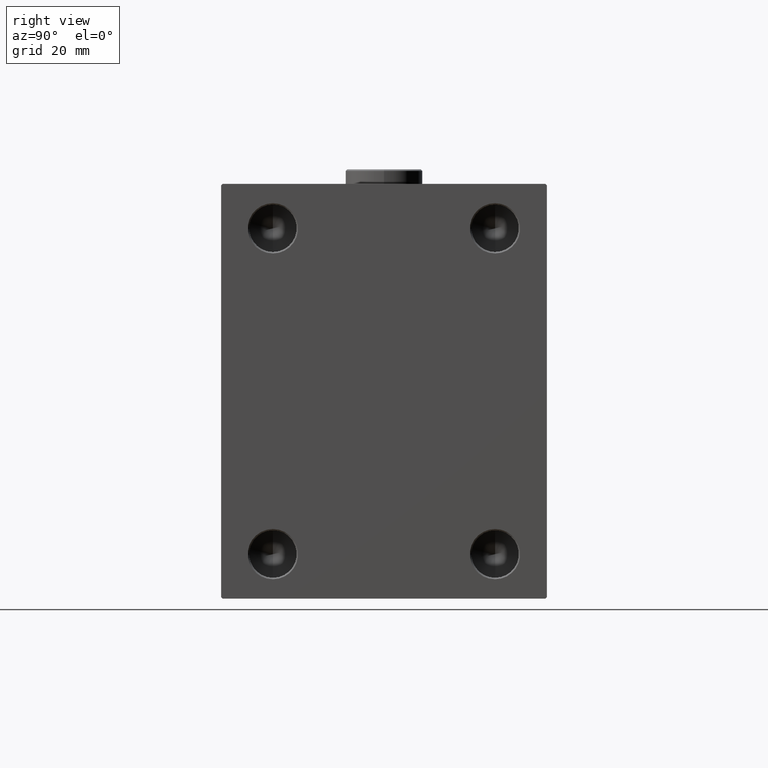
[diagram: clean part render]
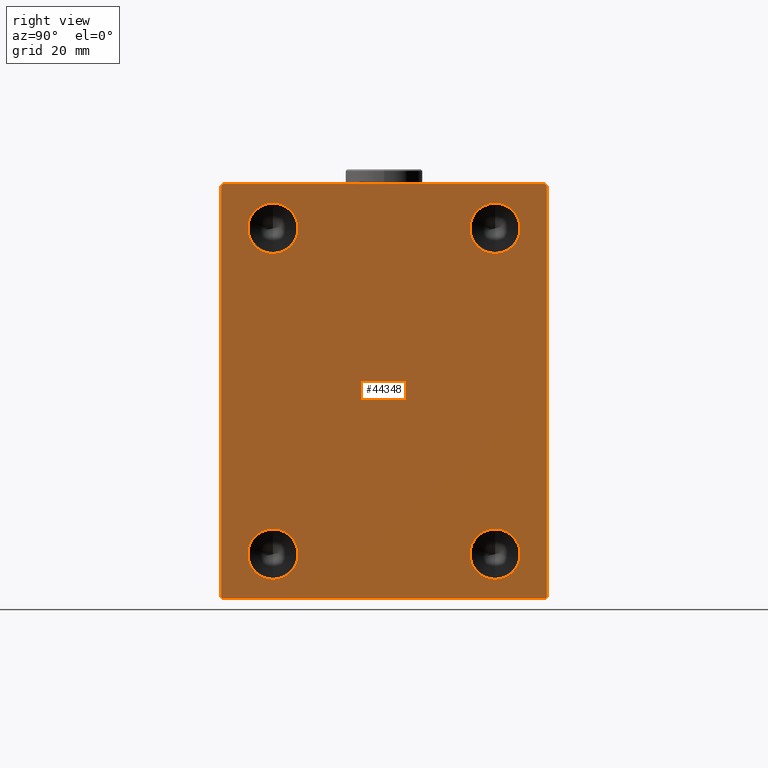
[diagram: same view with one face highlighted and labeled with its STEP entity id]
A machine part, right view. The second image highlights one B-rep face of the part: STEP entity #44348.
In plain terms, the highlighted planar face has unit normal (1, 0, 0).
Its self-contained STEP definition (entity closure, byte-faithful):
#60 = DIRECTION ( 'NONE',  ( -0.000000000000000000, -0.7071067811865474617, 0.7071067811865474617 ) ) ;
#397 = CARTESIAN_POINT ( 'NONE',  ( 153.0000000000000000, 37.50000000000000000, 55.00000000000000711 ) ) ;
#1197 = CARTESIAN_POINT ( 'NONE',  ( 153.0000000000000000, -37.49999999999999289, -46.49999999999994316 ) ) ;
#1283 = ORIENTED_EDGE ( 'NONE', *, *, #44210, .F. ) ;
#2653 = LINE ( 'NONE', #20443, #39554 ) ;
#2790 = DIRECTION ( 'NONE',  ( 1.000000000000000000, -0.000000000000000000, -0.000000000000000000 ) ) ;
#3127 = CIRCLE ( 'NONE', #28937, 8.500000000000063949 ) ;
#3317 = DIRECTION ( 'NONE',  ( -0.000000000000000000, 0.7071067811865426878, 0.7071067811865524577 ) ) ;
#4093 = ORIENTED_EDGE ( 'NONE', *, *, #35002, .T. ) ;
#4395 = CARTESIAN_POINT ( 'NONE',  ( 153.0000000000000000, -54.50000000000002132, 70.00000000000000000 ) ) ;
#4751 = DIRECTION ( 'NONE',  ( 0.000000000000000000, 0.000000000000000000, -1.000000000000000000 ) ) ;
#4853 = VECTOR ( 'NONE', #4751, 1000.000000000000000 ) ;
#4946 = VERTEX_POINT ( 'NONE', #27872 ) ;
#5234 = ORIENTED_EDGE ( 'NONE', *, *, #30015, .F. ) ;
#5271 = VERTEX_POINT ( 'NONE', #35842 ) ;
#5388 = DIRECTION ( 'NONE',  ( 0.000000000000000000, 0.000000000000000000, -1.000000000000000000 ) ) ;
#5592 = LINE ( 'NONE', #44882, #15299 ) ;
#5794 = EDGE_CURVE ( 'NONE', #11858, #36536, #8443, .T. ) ;
#6274 = CARTESIAN_POINT ( 'NONE',  ( 153.0000000000000000, -37.49999999999999289, 63.50000000000005684 ) ) ;
#6327 = VECTOR ( 'NONE', #32615, 1000.000000000000000 ) ;
#7029 = CARTESIAN_POINT ( 'NONE',  ( 153.0000000000000000, 0.000000000000000000, 0.000000000000000000 ) ) ;
#7195 = CARTESIAN_POINT ( 'NONE',  ( 153.0000000000000000, 62.25000000000002132, 62.25000000000002132 ) ) ;
#7254 = VECTOR ( 'NONE', #18160, 1000.000000000000114 ) ;
#7307 = DIRECTION ( 'NONE',  ( 0.000000000000000000, 0.000000000000000000, -1.000000000000000000 ) ) ;
#7315 = CIRCLE ( 'NONE', #33167, 8.500000000000063949 ) ;
#7766 = LINE ( 'NONE', #25553, #7254 ) ;
#7772 = CARTESIAN_POINT ( 'NONE',  ( 153.0000000000000000, -37.49999999999999289, -63.50000000000004263 ) ) ;
#7906 = EDGE_CURVE ( 'NONE', #22436, #9073, #41921, .T. ) ;
#8162 = DIRECTION ( 'NONE',  ( 1.000000000000000000, -0.000000000000000000, -0.000000000000000000 ) ) ;
#8443 = CIRCLE ( 'NONE', #27637, 8.500000000000063949 ) ;
#8779 = AXIS2_PLACEMENT_3D ( 'NONE', #7029, #20901, #34791 ) ;
#8905 = LINE ( 'NONE', #23004, #4853 ) ;
#9073 = VERTEX_POINT ( 'NONE', #9589 ) ;
#9275 = DIRECTION ( 'NONE',  ( 0.000000000000000000, -0.7071067811865524577, -0.7071067811865426878 ) ) ;
#9413 = CIRCLE ( 'NONE', #35270, 8.500000000000063949 ) ;
#9511 = CARTESIAN_POINT ( 'NONE',  ( 153.0000000000000000, 37.50000000000000000, -54.99999999999999289 ) ) ;
#9589 = CARTESIAN_POINT ( 'NONE',  ( 153.0000000000000000, 55.00000000000000711, -69.50000000000001421 ) ) ;
#9686 = ORIENTED_EDGE ( 'NONE', *, *, #34689, .T. ) ;
#9810 = FACE_BOUND ( 'NONE', #13491, .T. ) ;
#10031 = FACE_BOUND ( 'NONE', #37791, .T. ) ;
#10360 = VERTEX_POINT ( 'NONE', #15053 ) ;
#10443 = EDGE_LOOP ( 'NONE', ( #21472, #23008 ) ) ;
#10998 = CIRCLE ( 'NONE', #36861, 8.500000000000063949 ) ;
#11445 = DIRECTION ( 'NONE',  ( 1.000000000000000000, -0.000000000000000000, -0.000000000000000000 ) ) ;
#11482 = ORIENTED_EDGE ( 'NONE', *, *, #41410, .T. ) ;
#11858 = VERTEX_POINT ( 'NONE', #7772 ) ;
#12852 = CARTESIAN_POINT ( 'NONE',  ( 153.0000000000000000, 37.50000000000000000, -54.99999999999999289 ) ) ;
#12925 = CARTESIAN_POINT ( 'NONE',  ( 153.0000000000000000, 37.50000000000000000, -63.50000000000004263 ) ) ;
#13432 = DIRECTION ( 'NONE',  ( 1.000000000000000000, -0.000000000000000000, -0.000000000000000000 ) ) ;
#13491 = EDGE_LOOP ( 'NONE', ( #1283, #27911 ) ) ;
#14464 = DIRECTION ( 'NONE',  ( 0.000000000000000000, 0.000000000000000000, -1.000000000000000000 ) ) ;
#14947 = ORIENTED_EDGE ( 'NONE', *, *, #39020, .T. ) ;
#15053 = CARTESIAN_POINT ( 'NONE',  ( 153.0000000000000000, -55.00000000000000000, -69.50000000000000000 ) ) ;
#15150 = DIRECTION ( 'NONE',  ( 1.000000000000000000, -0.000000000000000000, -0.000000000000000000 ) ) ;
#15162 = VECTOR ( 'NONE', #3317, 1000.000000000000000 ) ;
#15299 = VECTOR ( 'NONE', #9275, 1000.000000000000000 ) ;
#15415 = VERTEX_POINT ( 'NONE', #19799 ) ;
#15447 = EDGE_CURVE ( 'NONE', #43790, #15415, #9413, .T. ) ;
#17047 = ORIENTED_EDGE ( 'NONE', *, *, #43552, .F. ) ;
#17097 = AXIS2_PLACEMENT_3D ( 'NONE', #9511, #13432, #19693 ) ;
#18160 = DIRECTION ( 'NONE',  ( -0.000000000000000000, 0.7071067811865474617, -0.7071067811865474617 ) ) ;
#18566 = EDGE_CURVE ( 'NONE', #4946, #43511, #7315, .T. ) ;
#19420 = EDGE_LOOP ( 'NONE', ( #41179, #14947, #9686, #11482, #4093, #40770, #36263, #20248 ) ) ;
#19693 = DIRECTION ( 'NONE',  ( 0.000000000000000000, 0.000000000000000000, -1.000000000000000000 ) ) ;
#19799 = CARTESIAN_POINT ( 'NONE',  ( 153.0000000000000000, 37.50000000000000000, -46.49999999999994316 ) ) ;
#20248 = ORIENTED_EDGE ( 'NONE', *, *, #30248, .T. ) ;
#20443 = CARTESIAN_POINT ( 'NONE',  ( 153.0000000000000000, 54.99999999999999289, 70.00000000000001421 ) ) ;
#20536 = VERTEX_POINT ( 'NONE', #27306 ) ;
#20901 = DIRECTION ( 'NONE',  ( 1.000000000000000000, 0.000000000000000000, 0.000000000000000000 ) ) ;
#21472 = ORIENTED_EDGE ( 'NONE', *, *, #35239, .F. ) ;
#22436 = VERTEX_POINT ( 'NONE', #27979 ) ;
#23004 = CARTESIAN_POINT ( 'NONE',  ( 153.0000000000000000, -55.00000000000000000, 70.00000000000000000 ) ) ;
#23008 = ORIENTED_EDGE ( 'NONE', *, *, #5794, .F. ) ;
#23562 = ORIENTED_EDGE ( 'NONE', *, *, #15447, .F. ) ;
#24132 = PLANE ( 'NONE',  #8779 ) ;
#24584 = FACE_OUTER_BOUND ( 'NONE', #19420, .T. ) ;
#24976 = LINE ( 'NONE', #39090, #6327 ) ;
#25553 = CARTESIAN_POINT ( 'NONE',  ( 153.0000000000000000, -62.25000000000000000, -62.25000000000000000 ) ) ;
#26042 = VECTOR ( 'NONE', #36038, 1000.000000000000000 ) ;
#26084 = VERTEX_POINT ( 'NONE', #38425 ) ;
#26254 = CIRCLE ( 'NONE', #35863, 8.500000000000063949 ) ;
#26637 = CARTESIAN_POINT ( 'NONE',  ( 153.0000000000000000, -37.49999999999999289, 55.00000000000000711 ) ) ;
#26682 = EDGE_LOOP ( 'NONE', ( #35553, #23562 ) ) ;
#27197 = VERTEX_POINT ( 'NONE', #38657 ) ;
#27306 = CARTESIAN_POINT ( 'NONE',  ( 153.0000000000000000, 54.50000000000002132, 70.00000000000001421 ) ) ;
#27375 = CARTESIAN_POINT ( 'NONE',  ( 153.0000000000000000, -37.49999999999999289, 55.00000000000000711 ) ) ;
#27637 = AXIS2_PLACEMENT_3D ( 'NONE', #35734, #28790, #7307 ) ;
#27872 = CARTESIAN_POINT ( 'NONE',  ( 153.0000000000000000, 37.50000000000000000, 46.49999999999995737 ) ) ;
#27911 = ORIENTED_EDGE ( 'NONE', *, *, #18566, .F. ) ;
#27979 = CARTESIAN_POINT ( 'NONE',  ( 153.0000000000000000, 54.50000000000004263, -69.99999999999998579 ) ) ;
#28288 = FACE_BOUND ( 'NONE', #26682, .T. ) ;
#28790 = DIRECTION ( 'NONE',  ( 1.000000000000000000, -0.000000000000000000, -0.000000000000000000 ) ) ;
#28937 = AXIS2_PLACEMENT_3D ( 'NONE', #26637, #8162, #5388 ) ;
#29119 = EDGE_CURVE ( 'NONE', #15415, #43790, #31127, .T. ) ;
#29283 = VERTEX_POINT ( 'NONE', #6274 ) ;
#29972 = DIRECTION ( 'NONE',  ( 0.000000000000000000, 0.000000000000000000, -1.000000000000000000 ) ) ;
#30015 = EDGE_CURVE ( 'NONE', #29283, #5271, #3127, .T. ) ;
#30248 = EDGE_CURVE ( 'NONE', #26084, #20536, #42115, .T. ) ;
#30608 = DIRECTION ( 'NONE',  ( 1.000000000000000000, -0.000000000000000000, -0.000000000000000000 ) ) ;
#30646 = DIRECTION ( 'NONE',  ( 1.000000000000000000, -0.000000000000000000, -0.000000000000000000 ) ) ;
#31127 = CIRCLE ( 'NONE', #17097, 8.500000000000063949 ) ;
#32084 = EDGE_CURVE ( 'NONE', #9073, #26084, #39269, .T. ) ;
#32505 = DIRECTION ( 'NONE',  ( 0.000000000000000000, 0.000000000000000000, -1.000000000000000000 ) ) ;
#32615 = DIRECTION ( 'NONE',  ( 0.000000000000000000, 1.000000000000000000, 1.261617073437677752E-16 ) ) ;
#32962 = CARTESIAN_POINT ( 'NONE',  ( 153.0000000000000000, -37.49999999999999289, -54.99999999999999289 ) ) ;
#33167 = AXIS2_PLACEMENT_3D ( 'NONE', #44859, #2790, #34012 ) ;
#33429 = VECTOR ( 'NONE', #60, 1000.000000000000114 ) ;
#34012 = DIRECTION ( 'NONE',  ( 0.000000000000000000, 0.000000000000000000, -1.000000000000000000 ) ) ;
#34689 = EDGE_CURVE ( 'NONE', #27197, #10360, #8905, .T. ) ;
#34791 = DIRECTION ( 'NONE',  ( 0.000000000000000000, 0.000000000000000000, -1.000000000000000000 ) ) ;
#35002 = EDGE_CURVE ( 'NONE', #39877, #22436, #24976, .T. ) ;
#35239 = EDGE_CURVE ( 'NONE', #36536, #11858, #26254, .T. ) ;
#35270 = AXIS2_PLACEMENT_3D ( 'NONE', #12852, #30646, #29972 ) ;
#35383 = EDGE_CURVE ( 'NONE', #20536, #38134, #2653, .T. ) ;
#35553 = ORIENTED_EDGE ( 'NONE', *, *, #29119, .F. ) ;
#35734 = CARTESIAN_POINT ( 'NONE',  ( 153.0000000000000000, -37.49999999999999289, -54.99999999999999289 ) ) ;
#35842 = CARTESIAN_POINT ( 'NONE',  ( 153.0000000000000000, -37.49999999999999289, 46.49999999999995737 ) ) ;
#35863 = AXIS2_PLACEMENT_3D ( 'NONE', #32962, #15150, #32505 ) ;
#36038 = DIRECTION ( 'NONE',  ( 0.000000000000000000, -9.912705577010325549E-17, 1.000000000000000000 ) ) ;
#36263 = ORIENTED_EDGE ( 'NONE', *, *, #32084, .T. ) ;
#36536 = VERTEX_POINT ( 'NONE', #1197 ) ;
#36861 = AXIS2_PLACEMENT_3D ( 'NONE', #397, #11445, #14464 ) ;
#37791 = EDGE_LOOP ( 'NONE', ( #5234, #17047 ) ) ;
#37792 = CARTESIAN_POINT ( 'NONE',  ( 153.0000000000000000, 37.50000000000000000, 63.50000000000005684 ) ) ;
#38134 = VERTEX_POINT ( 'NONE', #4395 ) ;
#38425 = CARTESIAN_POINT ( 'NONE',  ( 153.0000000000000000, 54.99999999999999289, 69.50000000000004263 ) ) ;
#38455 = CARTESIAN_POINT ( 'NONE',  ( 153.0000000000000000, 62.25000000000040501, -62.24999999999954525 ) ) ;
#38657 = CARTESIAN_POINT ( 'NONE',  ( 153.0000000000000000, -55.00000000000000000, 69.50000000000002842 ) ) ;
#38812 = CARTESIAN_POINT ( 'NONE',  ( 153.0000000000000000, 55.00000000000000711, -69.99999999999998579 ) ) ;
#39020 = EDGE_CURVE ( 'NONE', #38134, #27197, #5592, .T. ) ;
#39090 = CARTESIAN_POINT ( 'NONE',  ( 153.0000000000000000, -55.00000000000000000, -70.00000000000000000 ) ) ;
#39269 = LINE ( 'NONE', #38812, #26042 ) ;
#39554 = VECTOR ( 'NONE', #41708, 1000.000000000000000 ) ;
#39791 = AXIS2_PLACEMENT_3D ( 'NONE', #27375, #30608, #44721 ) ;
#39877 = VERTEX_POINT ( 'NONE', #45635 ) ;
#40770 = ORIENTED_EDGE ( 'NONE', *, *, #7906, .T. ) ;
#41179 = ORIENTED_EDGE ( 'NONE', *, *, #35383, .T. ) ;
#41410 = EDGE_CURVE ( 'NONE', #10360, #39877, #7766, .T. ) ;
#41492 = FACE_BOUND ( 'NONE', #10443, .T. ) ;
#41708 = DIRECTION ( 'NONE',  ( 0.000000000000000000, -1.000000000000000000, -1.261617073437677999E-16 ) ) ;
#41921 = LINE ( 'NONE', #38455, #15162 ) ;
#42115 = LINE ( 'NONE', #7195, #33429 ) ;
#43511 = VERTEX_POINT ( 'NONE', #37792 ) ;
#43552 = EDGE_CURVE ( 'NONE', #5271, #29283, #44975, .T. ) ;
#43790 = VERTEX_POINT ( 'NONE', #12925 ) ;
#44210 = EDGE_CURVE ( 'NONE', #43511, #4946, #10998, .T. ) ;
#44348 = ADVANCED_FACE ( 'NONE', ( #9810, #10031, #41492, #28288, #24584 ), #24132, .T. ) ;
#44721 = DIRECTION ( 'NONE',  ( 0.000000000000000000, 0.000000000000000000, -1.000000000000000000 ) ) ;
#44859 = CARTESIAN_POINT ( 'NONE',  ( 153.0000000000000000, 37.50000000000000000, 55.00000000000000711 ) ) ;
#44882 = CARTESIAN_POINT ( 'NONE',  ( 153.0000000000000000, -62.24999999999963762, 62.25000000000049738 ) ) ;
#44975 = CIRCLE ( 'NONE', #39791, 8.500000000000063949 ) ;
#45635 = CARTESIAN_POINT ( 'NONE',  ( 153.0000000000000000, -54.50000000000000000, -70.00000000000000000 ) ) ;